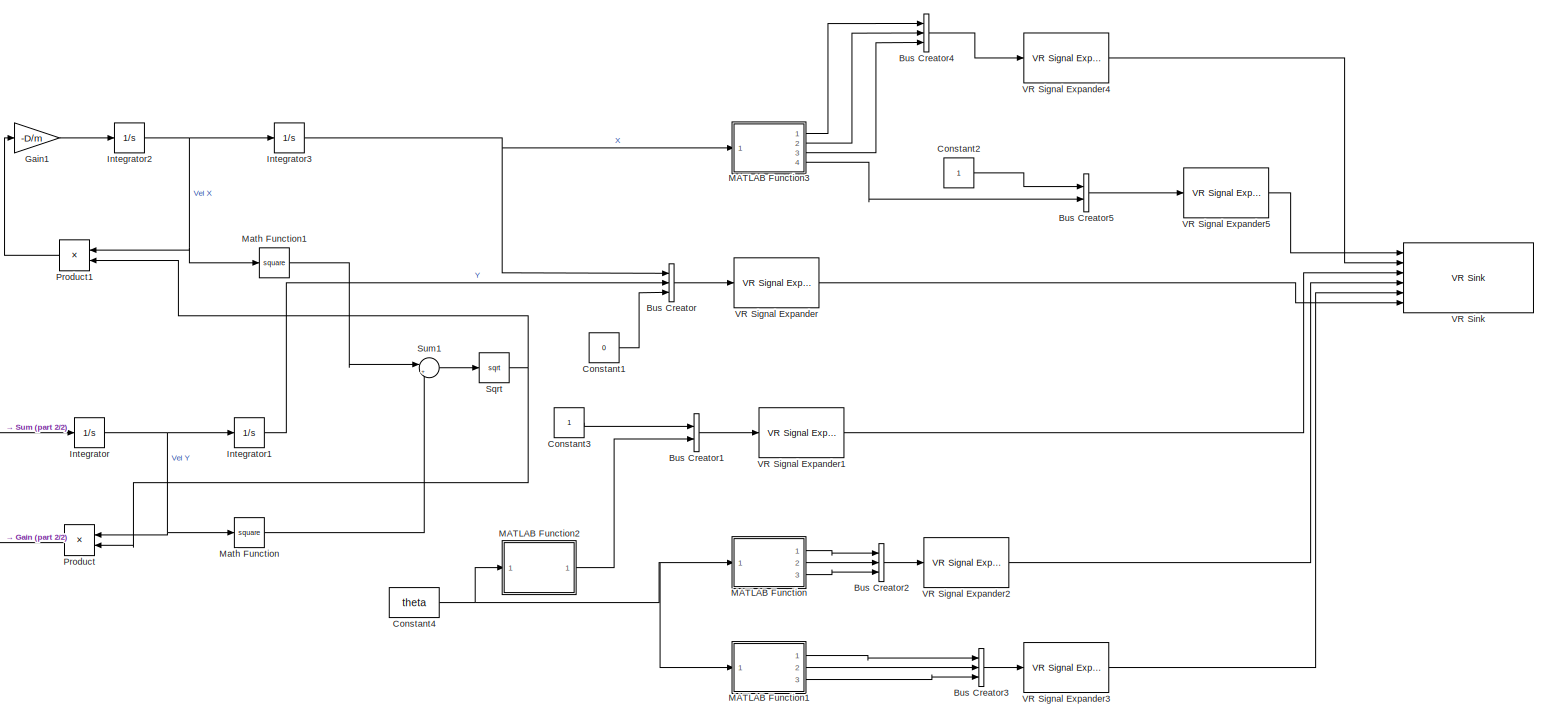
[diagram: root canvas - part 1/2, most of the canvas]
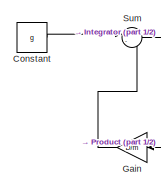
[diagram: root canvas - part 2/2, bottom left region]
MODEL slx_18b261afccaa
KIND model
CONFIG AbsTol = auto
CONFIG EnableMultiTasking = off
CONFIG FixedStep = 1e-3
CONFIG MaxStep = auto
CONFIG MinStep = auto
CONFIG RelTol = 1e-3
CONFIG SampleTimeConstraint = Unconstrained
CONFIG SolverName = FixedStepAuto
CONFIG StartTime = 0.0
CONFIG StopTime = 6
BLOCK [BusCreator] Bus Creator
  DisplayOption = bar
  InheritFromInputs = on
  Inputs = 3
  Ports = [3, 1]
BLOCK [BusCreator] Bus Creator1
  DisplayOption = bar
  InheritFromInputs = on
  Inputs = 2
  Ports = [2, 1]
BLOCK [BusCreator] Bus Creator2
  DisplayOption = bar
  InheritFromInputs = on
  Inputs = 3
  Ports = [3, 1]
BLOCK [BusCreator] Bus Creator3
  DisplayOption = bar
  InheritFromInputs = on
  Inputs = 3
  Ports = [3, 1]
BLOCK [BusCreator] Bus Creator4
  DisplayOption = bar
  InheritFromInputs = on
  Inputs = 3
  Ports = [3, 1]
BLOCK [BusCreator] Bus Creator5
  DisplayOption = bar
  InheritFromInputs = on
  Inputs = 2
  Ports = [2, 1]
BLOCK [Constant] Constant
  Value = g
BLOCK [Constant] Constant1
  Value = 0
BLOCK [Constant] Constant2
BLOCK [Constant] Constant3
BLOCK [Constant] Constant4
  Value = theta
BLOCK [Gain] Gain
  Gain = D/m
BLOCK [Gain] Gain1
  Gain = -D/m
BLOCK [Integrator] Integrator
  InitialCondition = vy
  LowerSaturationLimit = 0
  Ports = [1, 1]
  UpperSaturationLimit = 1000
BLOCK [Integrator] Integrator1
  InitialCondition = y0
  Ports = [1, 1]
BLOCK [Integrator] Integrator2
  InitialCondition = vx
  LowerSaturationLimit = 0
  Ports = [1, 1]
  UpperSaturationLimit = 1000
BLOCK [Integrator] Integrator3
  InitialCondition = x0
  Ports = [1, 1]
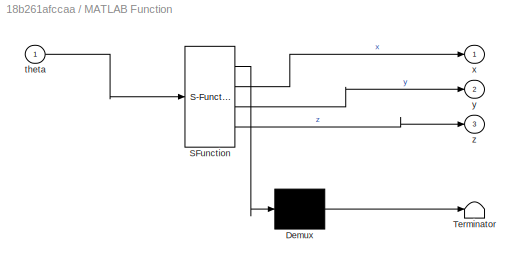
BLOCK [SubSystem] MATLAB Function
  ErrorFcn = Stateflow.Translate.translate
  PermitHierarchicalResolution = ExplicitOnly
  Ports = [1, 3]
  RequestExecContextInheritance = off
  SFBlockType = MATLAB Function
  TreatAsAtomicUnit = on
BLOCK [Demux] MATLAB Function/ Demux 
  Outputs = 1
  Ports = [1, 1]
BLOCK [S-Function] MATLAB Function/ SFunction 
  EnableBusSupport = on
  FunctionName = sf_sfun
  PortCounts = [1 4]
  Ports = [1, 4]
  SFcnIsStateOwnerBlock = off
  SFunctionDeploymentMode = off
  Tag = Stateflow S-Function 2
BLOCK [Terminator] MATLAB Function/ Terminator 
BLOCK [Inport] MATLAB Function/theta
BLOCK [Outport] MATLAB Function/x
BLOCK [Outport] MATLAB Function/y
  Port = 2
BLOCK [Outport] MATLAB Function/z
  Port = 3
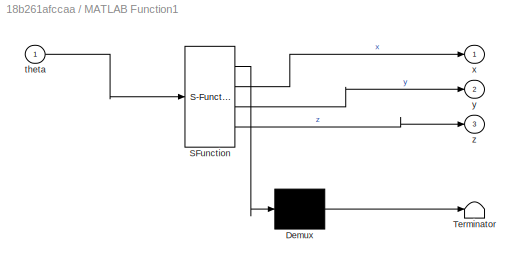
BLOCK [SubSystem] MATLAB Function1
  ErrorFcn = Stateflow.Translate.translate
  PermitHierarchicalResolution = ExplicitOnly
  Ports = [1, 3]
  RequestExecContextInheritance = off
  SFBlockType = MATLAB Function
  TreatAsAtomicUnit = on
BLOCK [Demux] MATLAB Function1/ Demux 
  Outputs = 1
  Ports = [1, 1]
BLOCK [S-Function] MATLAB Function1/ SFunction 
  EnableBusSupport = on
  FunctionName = sf_sfun
  PortCounts = [1 4]
  Ports = [1, 4]
  SFcnIsStateOwnerBlock = off
  SFunctionDeploymentMode = off
  Tag = Stateflow S-Function 1
BLOCK [Terminator] MATLAB Function1/ Terminator 
BLOCK [Inport] MATLAB Function1/theta
BLOCK [Outport] MATLAB Function1/x
BLOCK [Outport] MATLAB Function1/y
  Port = 2
BLOCK [Outport] MATLAB Function1/z
  Port = 3
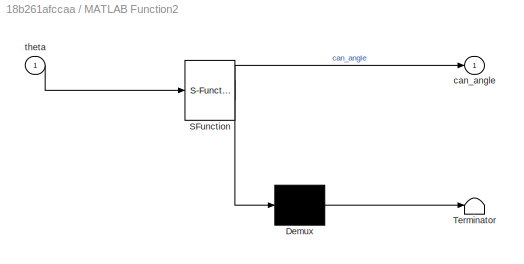
BLOCK [SubSystem] MATLAB Function2
  ErrorFcn = Stateflow.Translate.translate
  PermitHierarchicalResolution = ExplicitOnly
  Ports = [1, 1]
  RequestExecContextInheritance = off
  SFBlockType = MATLAB Function
  TreatAsAtomicUnit = on
BLOCK [Demux] MATLAB Function2/ Demux 
  Outputs = 1
  Ports = [1, 1]
BLOCK [S-Function] MATLAB Function2/ SFunction 
  EnableBusSupport = on
  FunctionName = sf_sfun
  PortCounts = [1 2]
  Ports = [1, 2]
  SFcnIsStateOwnerBlock = off
  SFunctionDeploymentMode = off
  Tag = Stateflow S-Function 3
BLOCK [Terminator] MATLAB Function2/ Terminator 
BLOCK [Outport] MATLAB Function2/can_angle
BLOCK [Inport] MATLAB Function2/theta
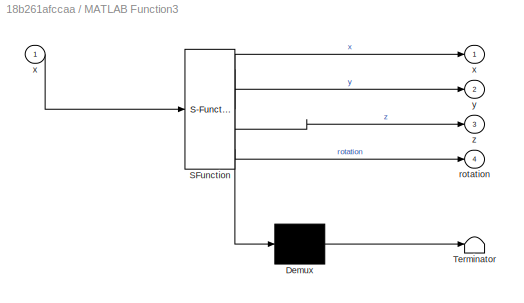
BLOCK [SubSystem] MATLAB Function3
  ErrorFcn = Stateflow.Translate.translate
  PermitHierarchicalResolution = ExplicitOnly
  Ports = [1, 4]
  RequestExecContextInheritance = off
  SFBlockType = MATLAB Function
  TreatAsAtomicUnit = on
BLOCK [Demux] MATLAB Function3/ Demux 
  Outputs = 1
  Ports = [1, 1]
BLOCK [S-Function] MATLAB Function3/ SFunction 
  EnableBusSupport = on
  FunctionName = sf_sfun
  PortCounts = [1 5]
  Ports = [1, 5]
  SFcnIsStateOwnerBlock = off
  SFunctionDeploymentMode = off
  Tag = Stateflow S-Function 4
BLOCK [Terminator] MATLAB Function3/ Terminator 
BLOCK [Outport] MATLAB Function3/rotation
  Port = 4
BLOCK [Outport] MATLAB Function3/x
BLOCK [Inport] MATLAB Function3/x 
BLOCK [Outport] MATLAB Function3/y
  Port = 2
BLOCK [Outport] MATLAB Function3/z
  Port = 3
BLOCK [Math] Math Function
  Operator = square
  Ports = [1, 1]
BLOCK [Math] Math Function1
  Operator = square
  Ports = [1, 1]
BLOCK [Product] Product
  Ports = [2, 1]
BLOCK [Product] Product1
  Ports = [2, 1]
BLOCK [Sqrt] Sqrt
BLOCK [Sum] Sum
  Inputs = |--
  Ports = [2, 1]
BLOCK [Sum] Sum1
  Inputs = |++
  Ports = [2, 1]
BLOCK [Reference] VR Signal Expander  REF=vrlib/VR Signal Expander
  Ports = [1, 1]
  SourceBlock = vrlib/VR Signal Expander
  SourceProductBaseCode = SL
  SourceType = VR Signal Expander
BLOCK [Reference] VR Signal Expander1  REF=vrlib/VR Signal Expander
  Ports = [1, 1]
  SourceBlock = vrlib/VR Signal Expander
  SourceProductBaseCode = SL
  SourceType = VR Signal Expander
BLOCK [Reference] VR Signal Expander2  REF=vrlib/VR Signal Expander
  Ports = [1, 1]
  SourceBlock = vrlib/VR Signal Expander
  SourceProductBaseCode = SL
  SourceType = VR Signal Expander
BLOCK [Reference] VR Signal Expander3  REF=vrlib/VR Signal Expander
  Ports = [1, 1]
  SourceBlock = vrlib/VR Signal Expander
  SourceProductBaseCode = SL
  SourceType = VR Signal Expander
BLOCK [Reference] VR Signal Expander4  REF=vrlib/VR Signal Expander
  Ports = [1, 1]
  SourceBlock = vrlib/VR Signal Expander
  SourceProductBaseCode = SL
  SourceType = VR Signal Expander
BLOCK [Reference] VR Signal Expander5  REF=vrlib/VR Signal Expander
  Ports = [1, 1]
  SourceBlock = vrlib/VR Signal Expander
  SourceProductBaseCode = SL
  SourceType = VR Signal Expander
BLOCK [Reference] VR Sink  REF=vrlib/VR Sink
  InstantiateOnLoad = on
  Ports = [6]
  SourceBlock = vrlib/VR Sink
  SourceProductBaseCode = SL
  SourceType = Virtual Reality Sink
LINE Bus Creator1:1 -> VR Signal Expander1:1
LINE Bus Creator2:1 -> VR Signal Expander2:1
LINE Bus Creator3:1 -> VR Signal Expander3:1
LINE Bus Creator4:1 -> VR Signal Expander4:1
LINE Bus Creator5:1 -> VR Signal Expander5:1
LINE Bus Creator:1 -> VR Signal Expander:1
LINE Constant1:1 -> Bus Creator:3
LINE Constant2:1 -> Bus Creator5:1
LINE Constant3:1 -> Bus Creator1:1
NET Constant4:1 -> MATLAB Function1:1, MATLAB Function2:1, MATLAB Function:1
LINE Constant:1 -> Sum:1
LINE Gain1:1 -> Integrator2:1
LINE Gain:1 -> Sum:2
LINE Integrator1:1 -> Bus Creator:2
NET Integrator2:1 -> Integrator3:1, Math Function1:1, Product1:1
NET Integrator3:1 -> Bus Creator:1, MATLAB Function3:1
NET Integrator:1 -> Integrator1:1, Math Function:1, Product:1
LINE MATLAB Function1:1 -> Bus Creator3:1
LINE MATLAB Function1:2 -> Bus Creator3:2
LINE MATLAB Function1:3 -> Bus Creator3:3
LINE MATLAB Function2:1 -> Bus Creator1:2
LINE MATLAB Function3:1 -> Bus Creator4:1
LINE MATLAB Function3:2 -> Bus Creator4:2
LINE MATLAB Function3:3 -> Bus Creator4:3
LINE MATLAB Function3:4 -> Bus Creator5:2
LINE MATLAB Function:1 -> Bus Creator2:1
LINE MATLAB Function:2 -> Bus Creator2:2
LINE MATLAB Function:3 -> Bus Creator2:3
LINE Math Function1:1 -> Sum1:1
LINE Math Function:1 -> Sum1:2
LINE Product1:1 -> Gain1:1
LINE Product:1 -> Gain:1
NET Sqrt:1 -> Product1:2, Product:2
LINE Sum1:1 -> Sqrt:1
LINE Sum:1 -> Integrator:1
LINE VR Signal Expander1:1 -> VR Sink:3
LINE VR Signal Expander2:1 -> VR Sink:4
LINE VR Signal Expander3:1 -> VR Sink:5
LINE VR Signal Expander4:1 -> VR Sink:2
LINE VR Signal Expander5:1 -> VR Sink:1
LINE VR Signal Expander:1 -> VR Sink:6
note: NET lines group one-source signal fan-out (src -> all destinations, sorted); 1:1 wires keep LINE
CHART MATLAB Function1 states=1 transitions=1
  STATE_LABEL 'eML_blk_kernel()'
  STATE_LABEL 'SCRIPT:\nfunction [x,y,z] = fcn(theta)\nif theta<=80 && theta>70\n    x=-29.2;\nelseif theta<=70 && theta>60\n    x=-30.2;\nelseif theta<=60\n    x=-31.2;\nelse\n    x=-28.2;\nend\ny = -4.1040;\nz=15;\nend\n'
CHART MATLAB Function states=1 transitions=1
  STATE_LABEL 'eML_blk_kernel()'
  STATE_LABEL 'SCRIPT:\nfunction [x,y,z] = fcn(theta)\nif theta<=80 && theta>70\n    x=-27.2;\nelseif theta<=70 && theta>60\n    x=-28.2;\nelseif theta<=60\n    x=-29.2;\nelse\n    x=-26.2;\nend\ny = -4.1040;\nz=25.0000;\nend\n'
CHART MATLAB Function2 states=1 transitions=1
  STATE_LABEL 'eML_blk_kernel()'
  STATE_LABEL 'SCRIPT:\nfunction can_angle= fcn(theta)\nif theta<=85 && theta>75\n    can_angle=-10;\nelseif theta<=75 && theta>65\n    can_angle=-70;\nelseif theta<=65 && theta>55\n    can_angle=40;\nelseif theta<=55 && theta>=45\n    can_angle=-45;\nelseif theta<45\n    can_angle=-80;\nelse\n    can_angle=0;\nend\nend'
CHART MATLAB Function3 states=1 transitions=1
  STATE_LABEL 'eML_blk_kernel()'
  STATE_LABEL 'SCRIPT:\nfunction [x,y,z,rotation] = fcn(x)\n if x>=34\n     y=-3;\n     rotation=-90;\n else\n     y=3;\n     rotation=0;\n end\n x=35;\n z=0;\nend'
CHART  states=0 transitions=0
CHART  states=0 transitions=0
CHART  states=0 transitions=0
CHART  states=0 transitions=0
